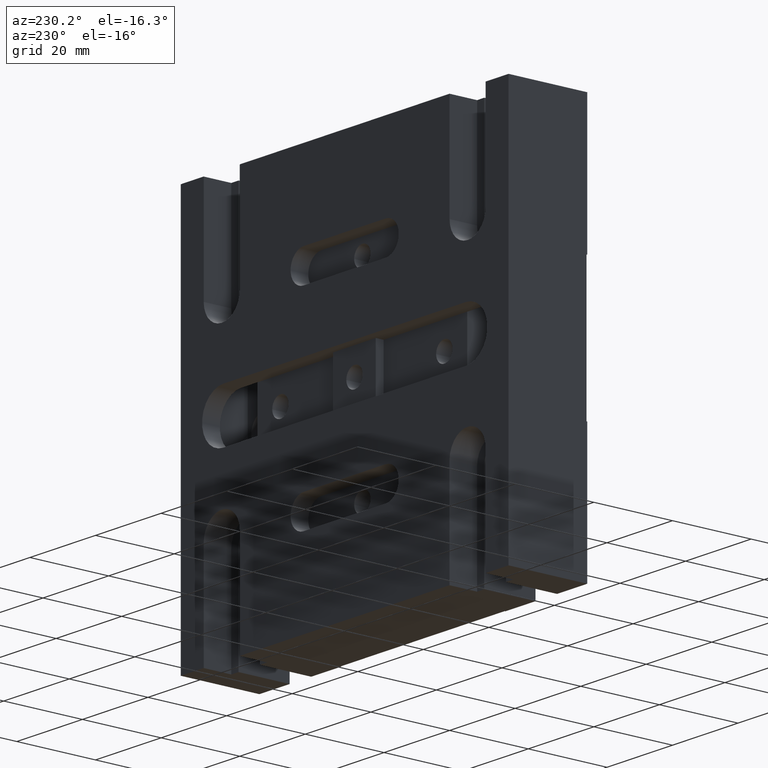
[diagram: clean part render]
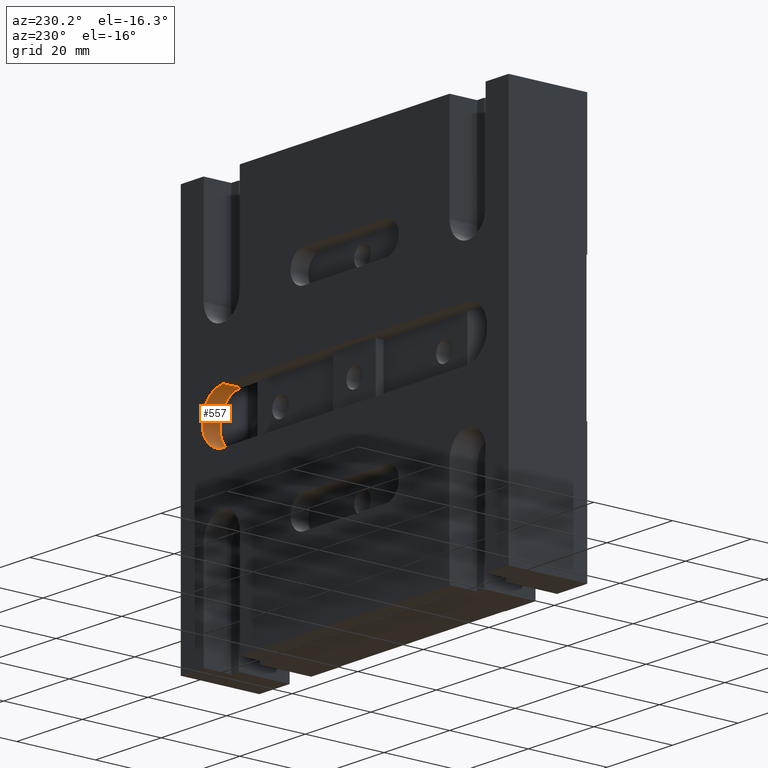
[diagram: same view with one face highlighted and labeled with its STEP entity id]
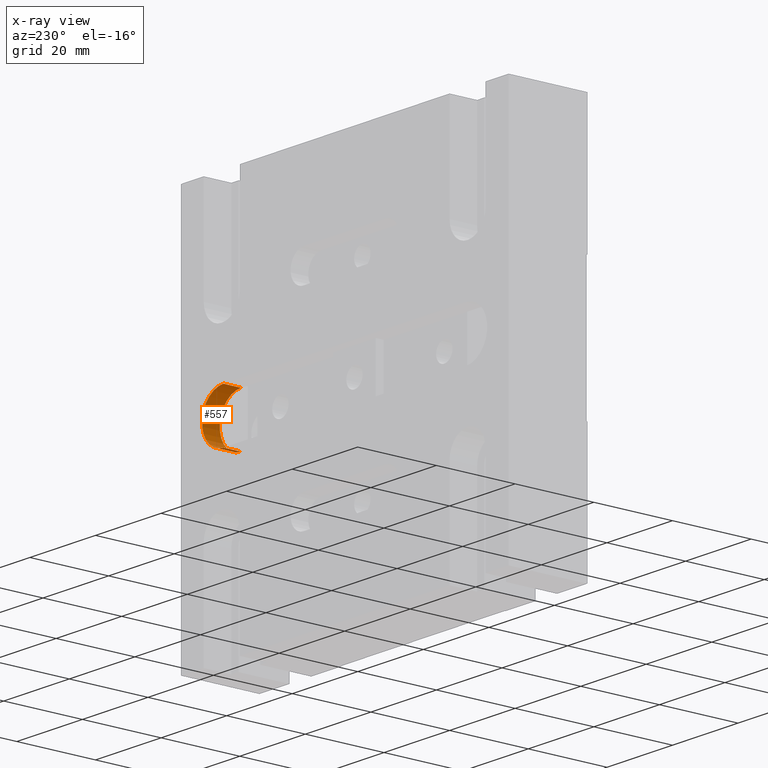
[diagram: x-ray of the same camera — body ghosted, the highlighted face saturated]
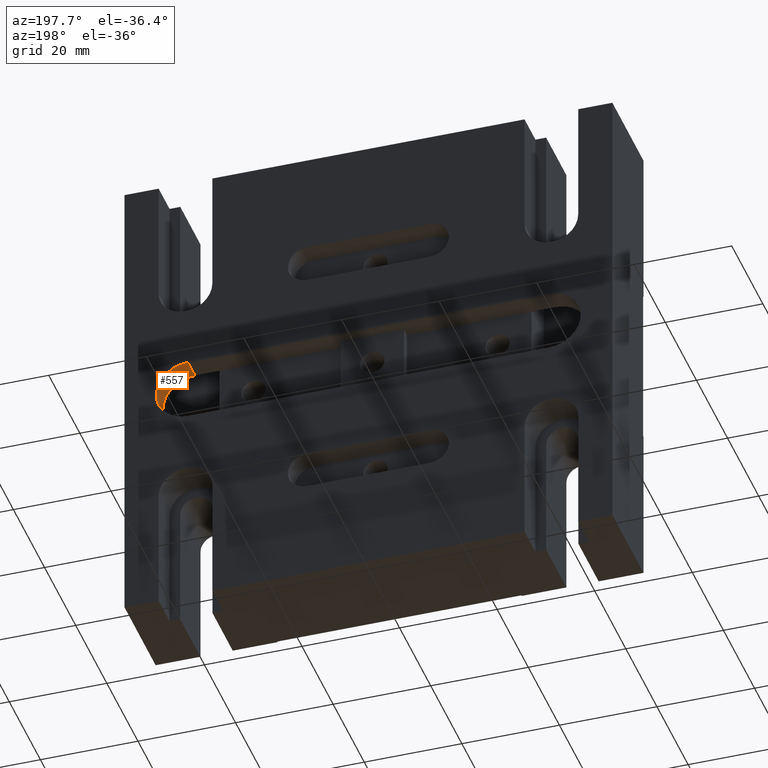
[diagram: same view with one face highlighted and labeled with its STEP entity id]
A machine part, auxiliary view. The second image highlights one B-rep face of the part: STEP entity #557.
The next image is the same camera in x-ray: the body ghosted, the highlighted face saturated — about 0% of this face is hidden behind the body in this view.
A second angle (auxiliary view) of the same face is appended — the face is thin or edge-on in the first view.
In plain terms, the highlighted cylindrical surface (edge-blend (fillet) strip) has radius 6.5 mm, axis along (-0, -1, 0).
Its self-contained STEP definition (entity closure, byte-faithful):
#242 = CARTESIAN_POINT ( 'NONE',  ( 36.99999999999999300, 20.00000000000000000, 6.499999999999992900 ) ) ;
#244 = ORIENTED_EDGE ( 'NONE', *, *, #2496, .F. ) ;
#283 = CIRCLE ( 'NONE', #5625, 6.500000000000000000 ) ;
#426 = LINE ( 'NONE', #242, #4754 ) ;
#557 = ADVANCED_FACE ( 'NONE', ( #4331 ), #2024, .F. ) ;
#583 = ORIENTED_EDGE ( 'NONE', *, *, #2911, .T. ) ;
#683 = CARTESIAN_POINT ( 'NONE',  ( 36.99999999999999300, 20.00000000000000000, -6.500000000000006200 ) ) ;
#1071 = DIRECTION ( 'NONE',  ( 2.218897729836139900E-047, 1.000000000000000000, -2.965575351820868600E-032 ) ) ;
#1124 = CARTESIAN_POINT ( 'NONE',  ( 36.99999999999999300, 15.50000000000000400, -6.500000000000006200 ) ) ;
#1380 = AXIS2_PLACEMENT_3D ( 'NONE', #4258, #1071, #1507 ) ;
#1457 = CARTESIAN_POINT ( 'NONE',  ( 36.99999999999999300, 20.00000000000000000, 6.499999999999992900 ) ) ;
#1507 = DIRECTION ( 'NONE',  ( 0.0000000000000000000, 0.0000000000000000000, 1.000000000000000000 ) ) ;
#1776 = VERTEX_POINT ( 'NONE', #1457 ) ;
#1953 = DIRECTION ( 'NONE',  ( -2.218897729836139900E-047, -1.000000000000000000, 2.965575351820868600E-032 ) ) ;
#1957 = AXIS2_PLACEMENT_3D ( 'NONE', #2228, #5763, #2206 ) ;
#2024 = CYLINDRICAL_SURFACE ( 'NONE', #1957, 6.500000000000000000 ) ;
#2206 = DIRECTION ( 'NONE',  ( 0.0000000000000000000, 0.0000000000000000000, 1.000000000000000000 ) ) ;
#2228 = CARTESIAN_POINT ( 'NONE',  ( 37.00000000000000000, 20.00000000000000000, -7.497420653063136000E-015 ) ) ;
#2328 = CARTESIAN_POINT ( 'NONE',  ( 36.99999999999999300, 15.50000000000000400, 6.499999999999992900 ) ) ;
#2392 = CARTESIAN_POINT ( 'NONE',  ( 36.99999999999999300, 20.00000000000000000, -6.500000000000006200 ) ) ;
#2473 = ORIENTED_EDGE ( 'NONE', *, *, #3984, .T. ) ;
#2496 = EDGE_CURVE ( 'NONE', #1776, #4917, #426, .T. ) ;
#2798 = EDGE_CURVE ( 'NONE', #3377, #3993, #3857, .T. ) ;
#2911 = EDGE_CURVE ( 'NONE', #3993, #4917, #283, .T. ) ;
#3377 = VERTEX_POINT ( 'NONE', #2392 ) ;
#3818 = DIRECTION ( 'NONE',  ( -2.218897729836139900E-047, -1.000000000000000000, 2.965575351820868600E-032 ) ) ;
#3857 = LINE ( 'NONE', #683, #5793 ) ;
#3984 = EDGE_CURVE ( 'NONE', #1776, #3377, #5278, .T. ) ;
#3993 = VERTEX_POINT ( 'NONE', #1124 ) ;
#4258 = CARTESIAN_POINT ( 'NONE',  ( 37.00000000000000000, 20.00000000000000000, -7.497420653063136000E-015 ) ) ;
#4329 = DIRECTION ( 'NONE',  ( 0.0000000000000000000, 0.0000000000000000000, 1.000000000000000000 ) ) ;
#4331 = FACE_OUTER_BOUND ( 'NONE', #5521, .T. ) ;
#4754 = VECTOR ( 'NONE', #1953, 1000.000000000000000 ) ;
#4775 = CARTESIAN_POINT ( 'NONE',  ( 37.00000000000000000, 15.50000000000000400, -7.497420653063136000E-015 ) ) ;
#4902 = ORIENTED_EDGE ( 'NONE', *, *, #2798, .T. ) ;
#4917 = VERTEX_POINT ( 'NONE', #2328 ) ;
#5278 = CIRCLE ( 'NONE', #1380, 6.500000000000000000 ) ;
#5521 = EDGE_LOOP ( 'NONE', ( #4902, #583, #244, #2473 ) ) ;
#5625 = AXIS2_PLACEMENT_3D ( 'NONE', #4775, #5640, #4329 ) ;
#5640 = DIRECTION ( 'NONE',  ( -2.218897729836139900E-047, -1.000000000000000000, 2.965575351820868600E-032 ) ) ;
#5763 = DIRECTION ( 'NONE',  ( -2.218897729836139900E-047, -1.000000000000000000, 2.965575351820868600E-032 ) ) ;
#5793 = VECTOR ( 'NONE', #3818, 1000.000000000000000 ) ;